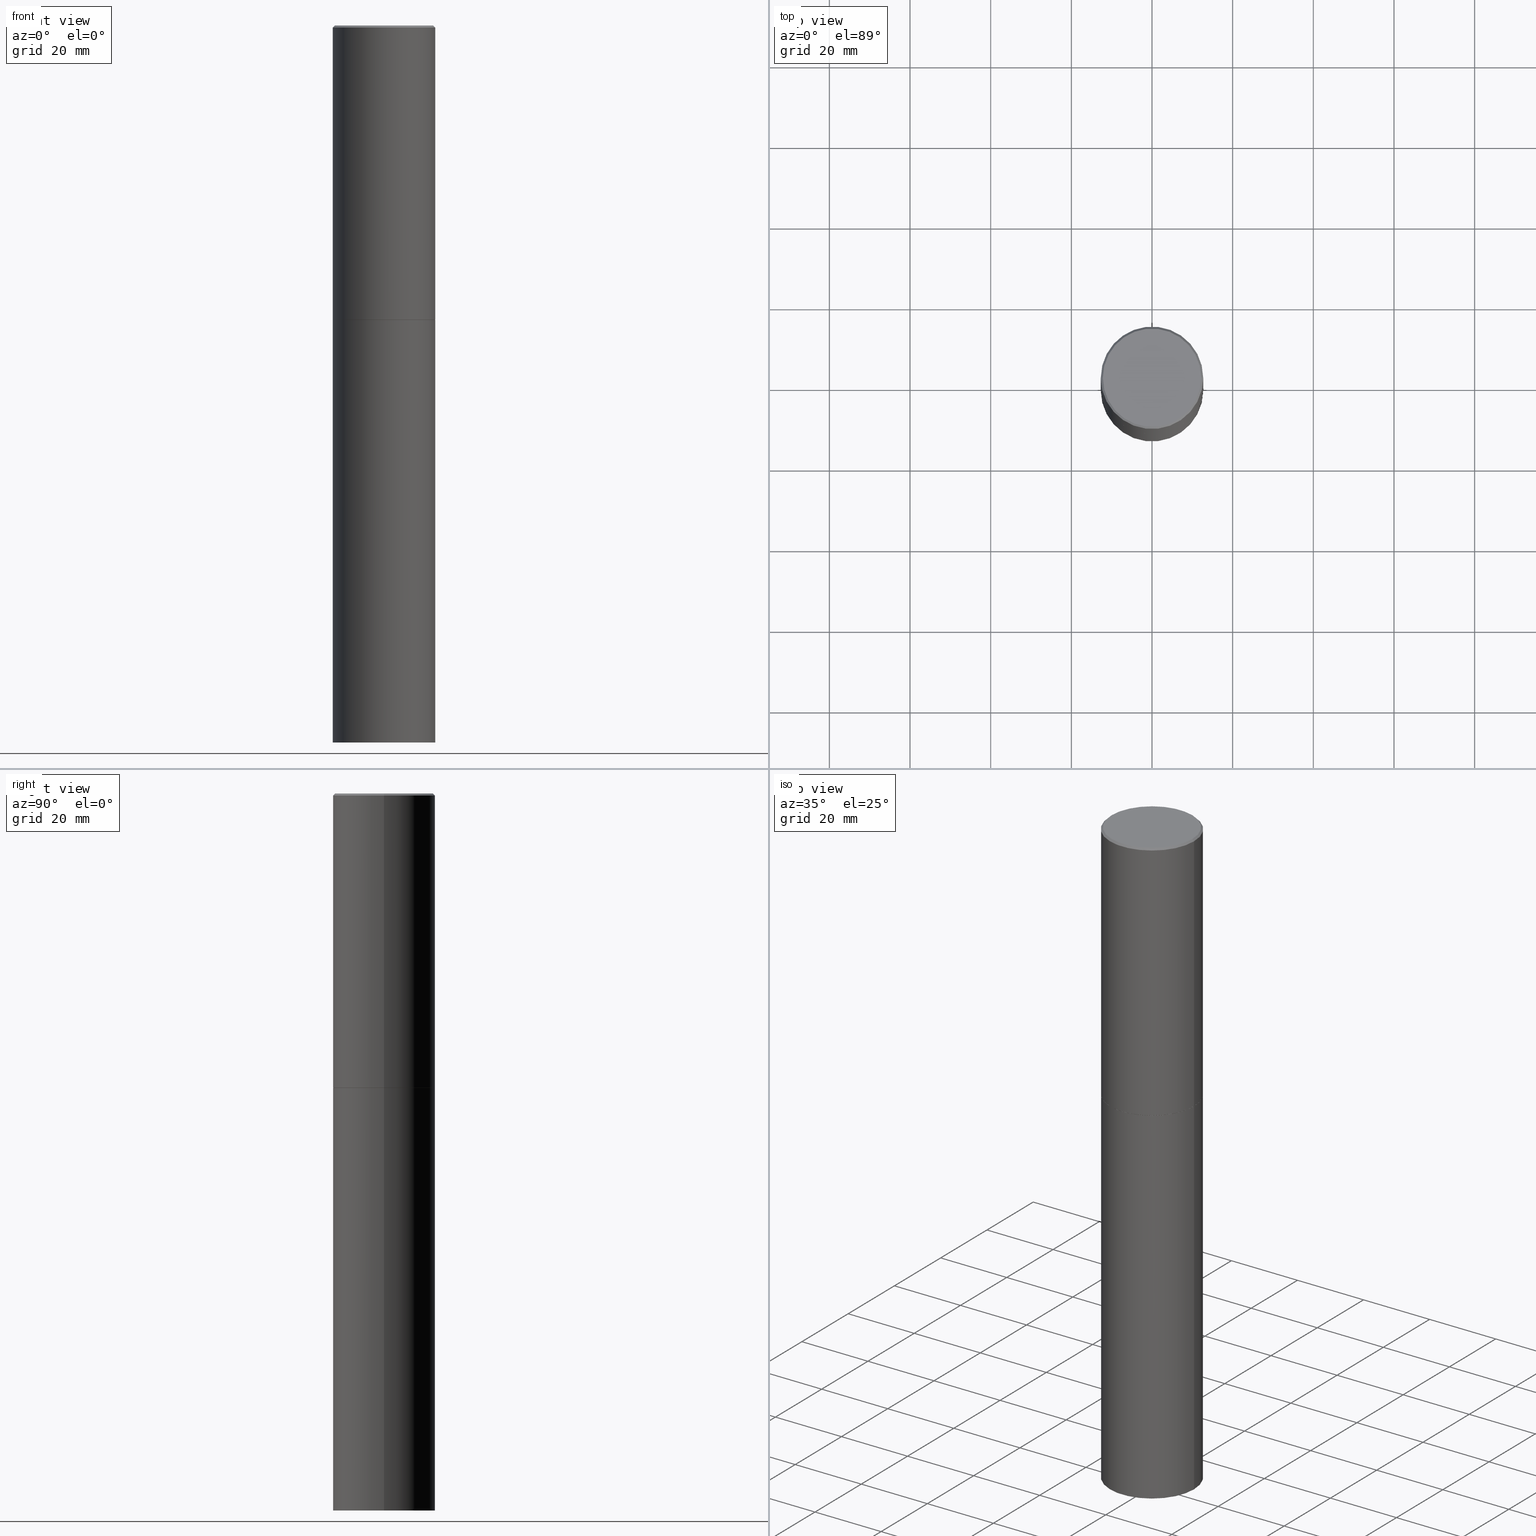
[diagram: canonical four-view strip — front | top / right | iso, engineering-drawing reading convention]
A machine part, canonical four-view strip (front | top / right | iso — engineering-drawing reading convention). The complete STEP part file that produces these views, byte-faithful:
ISO-10303-21;
HEADER;
FILE_DESCRIPTION (( 'STEP AP203' ),
    '1' );
FILE_NAME ('34870.STEP',
    '2024-02-27T18:09:00',
    ( '' ),
    ( '' ),
    'SwSTEP 2.0',
    'SolidWorks 2023',
    '' );
FILE_SCHEMA (( 'CONFIG_CONTROL_DESIGN' ));
ENDSEC;

DATA;
#1 =( CONVERSION_BASED_UNIT ( 'INCH', #254 ) LENGTH_UNIT ( ) NAMED_UNIT ( #146 ) );
#2 = SECURITY_CLASSIFICATION ( '', '', #94 ) ;
#3 = DIRECTION ( 'NONE',  ( -2.445468806185136597E-29, 3.491481338843145583E-15, 1.000000000000000000 ) ) ;
#4 = DIRECTION ( 'NONE',  ( -1.000000000000000000, 6.982962677686265922E-15, -4.876176775795935793E-29 ) ) ;
#5 = CARTESIAN_POINT ( 'NONE',  ( -0.4989999999999999991, -6.492400597731143185E-15, -2.875000000000000000 ) ) ;
#6 = CALENDAR_DATE ( 2024, 27, 2 ) ;
#7 = FACE_OUTER_BOUND ( 'NONE', #322, .T. ) ;
#8 = EDGE_CURVE ( 'NONE', #240, #291, #273, .T. ) ;
#9 = CARTESIAN_POINT ( 'NONE',  ( 3.491481338843304144E-15, 0.4999999999999755196, -7.000000000000001776 ) ) ;
#10 = COORDINATED_UNIVERSAL_TIME_OFFSET ( 5, 0, .BEHIND. ) ;
#11 = ORIENTED_EDGE ( 'NONE', *, *, #323, .F. ) ;
#12 = PLANE ( 'NONE',  #128 ) ;
#13 = VERTEX_POINT ( 'NONE', #332 ) ;
#14 = CIRCLE ( 'NONE', #198, 0.5000000000000000000 ) ;
#15 = COORDINATED_UNIVERSAL_TIME_OFFSET ( 5, 0, .BEHIND. ) ;
#16 = ORIENTED_EDGE ( 'NONE', *, *, #259, .F. ) ;
#17 = CARTESIAN_POINT ( 'NONE',  ( 7.030722817782267716E-29, -1.003800884917404311E-14, -2.875000000000000000 ) ) ;
#18 = DIRECTION ( 'NONE',  ( 1.000000000000000000, 0.000000000000000000, 0.000000000000000000 ) ) ;
#19 = ORIENTED_EDGE ( 'NONE', *, *, #265, .F. ) ;
#20 = CARTESIAN_POINT ( 'NONE',  ( 0.4989999999999999991, -1.352250722533949203E-14, -2.875000000000000000 ) ) ;
#21 = AXIS2_PLACEMENT_3D ( 'NONE', #206, #65, #148 ) ;
#22 = ORIENTED_EDGE ( 'NONE', *, *, #232, .T. ) ;
#23 = ORIENTED_EDGE ( 'NONE', *, *, #167, .T. ) ;
#24 = ADVANCED_FACE ( 'NONE', ( #192 ), #174, .T. ) ;
#25 = EDGE_LOOP ( 'NONE', ( #112, #299, #357, #70 ) ) ;
#26 = CARTESIAN_POINT ( 'NONE',  ( 7.028277348976082113E-29, -1.003451736783520168E-14, -2.874000000000000110 ) ) ;
#27 = APPROVAL_PERSON_ORGANIZATION ( #154, #172, #40 ) ;
#28 = DIRECTION ( 'NONE',  ( 1.000000000000000000, -6.982962677686269077E-15, 0.000000000000000000 ) ) ;
#29 = DIRECTION ( 'NONE',  ( 1.000000000000000000, -6.982962677686269077E-15, 0.000000000000000000 ) ) ;
#30 = CARTESIAN_POINT ( 'NONE',  ( 0.4799999999999996492, -3.396558832296480127E-15, 2.134256245052565135E-17 ) ) ;
#31 = AXIS2_PLACEMENT_3D ( 'NONE', #329, #169, #197 ) ;
#32 =( LENGTH_UNIT ( ) NAMED_UNIT ( * ) SI_UNIT ( $, .METRE. ) );
#33 = ADVANCED_FACE ( 'NONE', ( #269 ), #196, .T. ) ;
#34 = CARTESIAN_POINT ( 'NONE',  ( 0.5000000000000000000, -1.352599870667833503E-14, -2.874000000000000110 ) ) ;
#35 = EDGE_CURVE ( 'NONE', #13, #291, #56, .T. ) ;
#36 = CARTESIAN_POINT ( 'NONE',  ( 7.030722817782267716E-29, -1.003800884917404311E-14, -2.875000000000000000 ) ) ;
#37 = VERTEX_POINT ( 'NONE', #320 ) ;
#38 = VECTOR ( 'NONE', #335, 39.37007874015748143 ) ;
#39 = APPLICATION_CONTEXT ( 'configuration controlled 3d designs of mechanical parts and assemblies' ) ;
#40 = APPROVAL_ROLE ( '' ) ;
#41 = EDGE_LOOP ( 'NONE', ( #19, #160, #290, #16 ) ) ;
#42 = DATE_AND_TIME ( #284, #170 ) ;
#43 = COORDINATED_UNIVERSAL_TIME_OFFSET ( 5, 0, .BEHIND. ) ;
#44 = ORIENTED_EDGE ( 'NONE', *, *, #117, .T. ) ;
#45 = VECTOR ( 'NONE', #173, 39.37007874015748143 ) ;
#46 = DIRECTION ( 'NONE',  ( 0.000000000000000000, 0.000000000000000000, 1.000000000000000000 ) ) ;
#47 = ADVANCED_FACE ( 'NONE', ( #264 ), #12, .F. ) ;
#48 = DIRECTION ( 'NONE',  ( -2.445468806185136597E-29, 3.491481338843145583E-15, 1.000000000000000000 ) ) ;
#49 = FACE_OUTER_BOUND ( 'NONE', #41, .T. ) ;
#50 = EDGE_CURVE ( 'NONE', #350, #288, #14, .T. ) ;
#51 = AXIS2_PLACEMENT_3D ( 'NONE', #221, #300, #133 ) ;
#52 = DIRECTION ( 'NONE',  ( -2.445468806185136597E-29, 3.491481338843145583E-15, 1.000000000000000000 ) ) ;
#53 = AXIS2_PLACEMENT_3D ( 'NONE', #203, #63, #29 ) ;
#54 = CARTESIAN_POINT ( 'NONE',  ( 4.890937612370297681E-31, -6.982962677686324889E-17, -0.02000000000000009756 ) ) ;
#55 = DIRECTION ( 'NONE',  ( 1.000000000000000000, -6.982962677686267499E-15, 4.876431871984417079E-29 ) ) ;
#56 = CIRCLE ( 'NONE', #354, 0.5000000000000000000 ) ;
#57 = LINE ( 'NONE', #145, #72 ) ;
#58 = DIRECTION ( 'NONE',  ( -0.7071067811866199593, 7.493145998870616062E-15, 0.7071067811864750752 ) ) ;
#59 = DIRECTION ( 'NONE',  ( 1.000000000000000000, -6.982962677686266711E-15, 0.000000000000000000 ) ) ;
#60 = VECTOR ( 'NONE', #58, 39.37007874015748143 ) ;
#61 = CARTESIAN_POINT ( 'NONE',  ( 4.890937612370297681E-31, -6.982962677686324889E-17, -0.02000000000000009756 ) ) ;
#62 = DIRECTION ( 'NONE',  ( 1.000000000000000000, -6.982962677686265922E-15, 4.876176775795935793E-29 ) ) ;
#63 = DIRECTION ( 'NONE',  ( -2.445468806185136597E-29, 3.491481338843145583E-15, 1.000000000000000000 ) ) ;
#64 = CC_DESIGN_PERSON_AND_ORGANIZATION_ASSIGNMENT ( #99, #353, ( #285 ) ) ;
#65 = DIRECTION ( 'NONE',  ( 2.438088387897960049E-29, -3.491481338843145188E-15, -1.000000000000000000 ) ) ;
#66 = APPROVAL_DATE_TIME ( #73, #172 ) ;
#67 = CC_DESIGN_APPROVAL ( #86, ( #285 ) ) ;
#68 = CALENDAR_DATE ( 2024, 27, 2 ) ;
#69 = DATE_AND_TIME ( #68, #308 ) ;
#70 = ORIENTED_EDGE ( 'NONE', *, *, #35, .F. ) ;
#71 = VECTOR ( 'NONE', #111, 39.37007874015748143 ) ;
#72 = VECTOR ( 'NONE', #175, 39.37007874015748143 ) ;
#73 = DATE_AND_TIME ( #126, #318 ) ;
#74 = ORIENTED_EDGE ( 'NONE', *, *, #259, .T. ) ;
#75 = CARTESIAN_POINT ( 'NONE',  ( 0.000000000000000000, 0.000000000000000000, 0.000000000000000000 ) ) ;
#76 = APPLICATION_CONTEXT ( 'configuration controlled 3d designs of mechanical parts and assemblies' ) ;
#77 = CARTESIAN_POINT ( 'NONE',  ( -0.4999999999999997224, 3.421651712066268085E-15, -0.02000000000000009756 ) ) ;
#78 = VERTEX_POINT ( 'NONE', #281 ) ;
#79 = CIRCLE ( 'NONE', #224, 0.5000000000000000000 ) ;
#80 = PRODUCT_DEFINITION ( 'UNKNOWN', '', #285, #312 ) ;
#81 = CARTESIAN_POINT ( 'NONE',  ( -0.4999999999999997224, 3.421651712066268085E-15, -0.02000000000000009756 ) ) ;
#82 = DIRECTION ( 'NONE',  ( -2.445468806185136597E-29, 3.491481338843145583E-15, 1.000000000000000000 ) ) ;
#83 = EDGE_CURVE ( 'NONE', #78, #288, #90, .T. ) ;
#84 = CIRCLE ( 'NONE', #364, 0.4799999999999996492 ) ;
#85 = CYLINDRICAL_SURFACE ( 'NONE', #243, 0.5000000000000000000 ) ;
#86 = APPROVAL ( #239, 'UNSPECIFIED' ) ;
#87 = DIRECTION ( 'NONE',  ( 1.000000000000000000, -6.982962677686267499E-15, 4.876431871984417079E-29 ) ) ;
#88 = ADVANCED_FACE ( 'NONE', ( #120 ), #201, .F. ) ;
#89 = FACE_OUTER_BOUND ( 'NONE', #324, .T. ) ;
#90 = LINE ( 'NONE', #205, #330 ) ;
#91 = AXIS2_PLACEMENT_3D ( 'NONE', #140, #118, #258 ) ;
#92 = ADVANCED_FACE ( 'NONE', ( #7 ), #122, .T. ) ;
#93 = DIRECTION ( 'NONE',  ( 1.000000000000000000, -6.982962677686266711E-15, 0.000000000000000000 ) ) ;
#94 = SECURITY_CLASSIFICATION_LEVEL ( 'unclassified' ) ;
#95 = MANIFOLD_SOLID_BREP ( 'Body-Move/Copy2[2]', #138 ) ;
#96 = COORDINATED_UNIVERSAL_TIME_OFFSET ( 5, 0, .BEHIND. ) ;
#97 = EDGE_LOOP ( 'NONE', ( #215, #267 ) ) ;
#98 =( GEOMETRIC_REPRESENTATION_CONTEXT ( 3 ) GLOBAL_UNCERTAINTY_ASSIGNED_CONTEXT ( ( #210 ) ) GLOBAL_UNIT_ASSIGNED_CONTEXT ( ( #1, #277, #338 ) ) REPRESENTATION_CONTEXT ( 'NONE', 'WORKASPACE' ) );
#99 = PERSON_AND_ORGANIZATION ( #101, #297 ) ;
#100 = ORIENTED_EDGE ( 'NONE', *, *, #265, .T. ) ;
#101 = PERSON ( 'UNSPECIFIED', 'UNSPECIFIED', 'UNSPECIFIED', ('UNSPECIFIED'), ('UNSPECIFIED'), ('UNSPECIFIED') ) ;
#102 = PERSON_AND_ORGANIZATION ( #101, #297 ) ;
#103 = ORIENTED_EDGE ( 'NONE', *, *, #309, .T. ) ;
#104 = PERSON_AND_ORGANIZATION_ROLE ( 'design_supplier' ) ;
#105 = EDGE_LOOP ( 'NONE', ( #222, #11, #226, #74 ) ) ;
#106 = EDGE_CURVE ( 'NONE', #237, #131, #135, .T. ) ;
#107 = CARTESIAN_POINT ( 'NONE',  ( 4.890937612370297681E-31, -6.982962677686324889E-17, -0.02000000000000009756 ) ) ;
#108 = FACE_OUTER_BOUND ( 'NONE', #246, .T. ) ;
#109 = VERTEX_POINT ( 'NONE', #253 ) ;
#110 = CIRCLE ( 'NONE', #165, 0.4999999999999997224 ) ;
#111 = DIRECTION ( 'NONE',  ( 0.7071067811866199593, -2.468850131083015945E-15, 0.7071067811864750752 ) ) ;
#112 = ORIENTED_EDGE ( 'NONE', *, *, #336, .F. ) ;
#113 = LINE ( 'NONE', #116, #38 ) ;
#114 = CARTESIAN_POINT ( 'NONE',  ( 0.5000000000000000000, -1.352949018801717646E-14, -2.875000000000000000 ) ) ;
#115 = CC_DESIGN_PERSON_AND_ORGANIZATION_ASSIGNMENT ( #102, #104, ( #285 ) ) ;
#116 = CARTESIAN_POINT ( 'NONE',  ( 0.5000000000000000000, -3.491481338843133355E-15, 2.438088387897967896E-29 ) ) ;
#117 = EDGE_CURVE ( 'NONE', #109, #78, #212, .T. ) ;
#118 = DIRECTION ( 'NONE',  ( -2.445468806185136597E-29, 3.491481338843145583E-15, 1.000000000000000000 ) ) ;
#119 = CARTESIAN_POINT ( 'NONE',  ( -0.4999999999999998335, 3.552713678800499746E-15, -2.459467545127452330E-29 ) ) ;
#120 = FACE_OUTER_BOUND ( 'NONE', #194, .T. ) ;
#121 = APPROVAL_STATUS ( 'not_yet_approved' ) ;
#122 = CYLINDRICAL_SURFACE ( 'NONE', #164, 0.4999999999999998335 ) ;
#123 = DIRECTION ( 'NONE',  ( 1.000000000000000000, -6.982962677686266711E-15, 0.000000000000000000 ) ) ;
#124 = APPROVAL_STATUS ( 'not_yet_approved' ) ;
#125 = EDGE_LOOP ( 'NONE', ( #155, #218, #150, #134 ) ) ;
#126 = CALENDAR_DATE ( 2024, 27, 2 ) ;
#127 = ORIENTED_EDGE ( 'NONE', *, *, #344, .F. ) ;
#128 = AXIS2_PLACEMENT_3D ( 'NONE', #17, #233, #62 ) ;
#129 = AXIS2_PLACEMENT_3D ( 'NONE', #234, #283, #93 ) ;
#130 = DIRECTION ( 'NONE',  ( -2.445468806185136597E-29, 3.491481338843145583E-15, 1.000000000000000000 ) ) ;
#131 = VERTEX_POINT ( 'NONE', #81 ) ;
#132 = DATE_AND_TIME ( #6, #184 ) ;
#133 = DIRECTION ( 'NONE',  ( 1.000000000000000000, -6.982962677686270655E-15, 0.000000000000000000 ) ) ;
#134 = ORIENTED_EDGE ( 'NONE', *, *, #8, .F. ) ;
#135 = LINE ( 'NONE', #77, #183 ) ;
#136 = ADVANCED_FACE ( 'NONE', ( #49 ), #163, .T. ) ;
#137 = DIRECTION ( 'NONE',  ( -1.000000000000000000, 6.982962677686266711E-15, 0.000000000000000000 ) ) ;
#138 = CLOSED_SHELL ( 'NONE', ( #24, #92, #244, #209, #136, #287, #47, #88 ) ) ;
#139 = ORIENTED_EDGE ( 'NONE', *, *, #50, .T. ) ;
#140 = CARTESIAN_POINT ( 'NONE',  ( 0.000000000000000000, 0.000000000000000000, 0.000000000000000000 ) ) ;
#141 = CARTESIAN_POINT ( 'NONE',  ( 0.4999999999999998335, -3.491481338843132566E-15, 2.438088387897967336E-29 ) ) ;
#142 = FACE_OUTER_BOUND ( 'NONE', #25, .T. ) ;
#143 = CIRCLE ( 'NONE', #129, 0.5000000000000000000 ) ;
#144 = LINE ( 'NONE', #5, #60 ) ;
#145 = CARTESIAN_POINT ( 'NONE',  ( 0.4999999999999997224, -3.500078625662627502E-15, -0.02000000000000009756 ) ) ;
#146 = DIMENSIONAL_EXPONENTS ( 1.000000000000000000, 0.000000000000000000, 0.000000000000000000, 0.000000000000000000, 0.000000000000000000, 0.000000000000000000, 0.000000000000000000 ) ;
#147 = DIRECTION ( 'NONE',  ( -2.445468806185136597E-29, 3.491481338843145583E-15, 1.000000000000000000 ) ) ;
#148 = DIRECTION ( 'NONE',  ( -1.000000000000000000, 6.982962677686265922E-15, -4.876176775795935793E-29 ) ) ;
#149 = PERSON_AND_ORGANIZATION ( #101, #297 ) ;
#150 = ORIENTED_EDGE ( 'NONE', *, *, #167, .F. ) ;
#151 = EDGE_CURVE ( 'NONE', #240, #238, #307, .T. ) ;
#152 = SHAPE_DEFINITION_REPRESENTATION ( #216, #315 ) ;
#153 = ORIENTED_EDGE ( 'NONE', *, *, #83, .T. ) ;
#154 = PERSON_AND_ORGANIZATION ( #101, #297 ) ;
#155 = ORIENTED_EDGE ( 'NONE', *, *, #151, .T. ) ;
#156 = AXIS2_PLACEMENT_3D ( 'NONE', #75, #366, #296 ) ;
#157 = AXIS2_PLACEMENT_3D ( 'NONE', #242, #171, #355 ) ;
#158 = CARTESIAN_POINT ( 'NONE',  ( 7.028277348976082113E-29, -1.003451736783520168E-14, -2.874000000000000110 ) ) ;
#159 = APPLICATION_PROTOCOL_DEFINITION ( 'international standard', 'config_control_design', 1994, #39 ) ;
#160 = ORIENTED_EDGE ( 'NONE', *, *, #35, .T. ) ;
#161 = APPROVAL ( #124, 'UNSPECIFIED' ) ;
#162 = DIRECTION ( 'NONE',  ( 1.000000000000000000, -6.982962677686269077E-15, 0.000000000000000000 ) ) ;
#163 = CYLINDRICAL_SURFACE ( 'NONE', #156, 0.4999999999999998335 ) ;
#164 = AXIS2_PLACEMENT_3D ( 'NONE', #345, #195, #223 ) ;
#165 = AXIS2_PLACEMENT_3D ( 'NONE', #61, #304, #59 ) ;
#166 = CARTESIAN_POINT ( 'NONE',  ( -5.219257071676098903E-46, 7.451715851902235727E-32, 2.134256245050205639E-17 ) ) ;
#167 = EDGE_CURVE ( 'NONE', #291, #13, #303, .T. ) ;
#168 = ORIENTED_EDGE ( 'NONE', *, *, #50, .F. ) ;
#169 = DIRECTION ( 'NONE',  ( -2.445468806185136597E-29, 3.491481338843145583E-15, 1.000000000000000000 ) ) ;
#170 = LOCAL_TIME ( 13, 9, 0.000000000000000000, #43 ) ;
#171 = DIRECTION ( 'NONE',  ( 2.445468806185136597E-29, -3.491481338843145583E-15, -1.000000000000000000 ) ) ;
#172 = APPROVAL ( #121, 'UNSPECIFIED' ) ;
#173 = DIRECTION ( 'NONE',  ( -2.445468806185136877E-29, 3.491481338843145188E-15, 1.000000000000000000 ) ) ;
#174 = CONICAL_SURFACE ( 'NONE', #279, 0.4989999999999999991, 0.7853981633975507526 ) ;
#175 = DIRECTION ( 'NONE',  ( 0.7071067811865464625, -7.319954787623252890E-15, -0.7071067811865485719 ) ) ;
#176 = CC_DESIGN_SECURITY_CLASSIFICATION ( #2, ( #285 ) ) ;
#177 = DIRECTION ( 'NONE',  ( -2.445468806185136877E-29, 3.491481338843145188E-15, 1.000000000000000000 ) ) ;
#178 = DIRECTION ( 'NONE',  ( -2.445468806185136877E-29, 3.491481338843145188E-15, 1.000000000000000000 ) ) ;
#179 = DIRECTION ( 'NONE',  ( -2.445468806185136597E-29, 3.491481338843145583E-15, 1.000000000000000000 ) ) ;
#180 = ORIENTED_EDGE ( 'NONE', *, *, #83, .F. ) ;
#181 = EDGE_CURVE ( 'NONE', #238, #240, #225, .T. ) ;
#182 = DATE_TIME_ROLE ( 'creation_date' ) ;
#183 = VECTOR ( 'NONE', #333, 39.37007874015748143 ) ;
#184 = LOCAL_TIME ( 13, 9, 0.000000000000000000, #15 ) ;
#185 = CC_DESIGN_DATE_AND_TIME_ASSIGNMENT ( #42, #313, ( #2 ) ) ;
#186 = EDGE_CURVE ( 'NONE', #271, #237, #229, .T. ) ;
#187 = APPROVAL_DATE_TIME ( #69, #161 ) ;
#188 = APPROVAL_ROLE ( '' ) ;
#189 = PRODUCT_RELATED_PRODUCT_CATEGORY ( 'detail', '', ( #263 ) ) ;
#190 = CARTESIAN_POINT ( 'NONE',  ( 0.000000000000000000, 0.000000000000000000, 0.000000000000000000 ) ) ;
#191 = EDGE_LOOP ( 'NONE', ( #44, #153, #168, #314 ) ) ;
#192 = FACE_OUTER_BOUND ( 'NONE', #125, .T. ) ;
#193 = ORIENTED_EDGE ( 'NONE', *, *, #106, .F. ) ;
#194 = EDGE_LOOP ( 'NONE', ( #326, #227 ) ) ;
#195 = DIRECTION ( 'NONE',  ( -2.445468806185136597E-29, 3.491481338843145583E-15, 1.000000000000000000 ) ) ;
#196 = PLANE ( 'NONE',  #316 ) ;
#197 = DIRECTION ( 'NONE',  ( 1.000000000000000000, -6.982962677686269077E-15, 0.000000000000000000 ) ) ;
#198 = AXIS2_PLACEMENT_3D ( 'NONE', #36, #147, #123 ) ;
#199 = CONICAL_SURFACE ( 'NONE', #157, 0.4999999999999997224, 0.7853981633974468357 ) ;
#200 = DIRECTION ( 'NONE',  ( 1.000000000000000000, -6.982962677686266711E-15, 4.876176775795935793E-29 ) ) ;
#201 = PLANE ( 'NONE',  #21 ) ;
#202 = AXIS2_PLACEMENT_3D ( 'NONE', #362, #294, #28 ) ;
#203 = CARTESIAN_POINT ( 'NONE',  ( 7.030722817782267716E-29, -1.003800884917404311E-14, -2.875000000000000000 ) ) ;
#204 = AXIS2_PLACEMENT_3D ( 'NONE', #166, #301, #55 ) ;
#205 = CARTESIAN_POINT ( 'NONE',  ( -0.5000000000000000000, 3.552713678800500929E-15, -2.459467545127452891E-29 ) ) ;
#206 = CARTESIAN_POINT ( 'NONE',  ( 3.351822085289405181E-15, 0.4799999999999996492, -1.665239761419457638E-15 ) ) ;
#207 = DIRECTION ( 'NONE',  ( 1.000000000000000000, -6.982962677686266711E-15, 0.000000000000000000 ) ) ;
#208 = APPROVAL_DATE_TIME ( #132, #86 ) ;
#209 = ADVANCED_FACE ( 'NONE', ( #276 ), #199, .T. ) ;
#210 = UNCERTAINTY_MEASURE_WITH_UNIT (LENGTH_MEASURE( 1.000000000000000082E-05 ), #1, 'distance_accuracy_value', 'NONE');
#211 = APPROVAL_ROLE ( '' ) ;
#212 = CIRCLE ( 'NONE', #51, 0.5000000000000000000 ) ;
#213 = CC_DESIGN_APPROVAL ( #161, ( #2 ) ) ;
#214 = APPLICATION_PROTOCOL_DEFINITION ( 'international standard', 'config_control_design', 1994, #76 ) ;
#215 = ORIENTED_EDGE ( 'NONE', *, *, #117, .F. ) ;
#216 = PRODUCT_DEFINITION_SHAPE ( 'NONE', 'NONE',  #80 ) ;
#217 = PERSON_AND_ORGANIZATION ( #101, #297 ) ;
#218 = ORIENTED_EDGE ( 'NONE', *, *, #336, .T. ) ;
#219 = MANIFOLD_SOLID_BREP ( 'Body-Move/Copy2[1]', #363 ) ;
#220 = AXIS2_PLACEMENT_3D ( 'NONE', #107, #327, #245 ) ;
#221 = CARTESIAN_POINT ( 'NONE',  ( 1.711828164329595394E-28, -2.444036937190201868E-14, -7.000000000000000000 ) ) ;
#222 = ORIENTED_EDGE ( 'NONE', *, *, #309, .F. ) ;
#223 = DIRECTION ( 'NONE',  ( 1.000000000000000000, -6.982962677686267499E-15, 4.876176775795936353E-29 ) ) ;
#224 = AXIS2_PLACEMENT_3D ( 'NONE', #256, #3, #340 ) ;
#225 = CIRCLE ( 'NONE', #31, 0.4989999999999999991 ) ;
#226 = ORIENTED_EDGE ( 'NONE', *, *, #106, .T. ) ;
#227 = ORIENTED_EDGE ( 'NONE', *, *, #186, .T. ) ;
#228 = CARTESIAN_POINT ( 'NONE',  ( -5.219257071676098903E-46, 7.451715851902235727E-32, 2.134256245050205639E-17 ) ) ;
#229 = CIRCLE ( 'NONE', #204, 0.4799999999999996492 ) ;
#230 = FACE_OUTER_BOUND ( 'NONE', #191, .T. ) ;
#231 = LINE ( 'NONE', #141, #45 ) ;
#232 = EDGE_CURVE ( 'NONE', #37, #131, #292, .T. ) ;
#233 = DIRECTION ( 'NONE',  ( -2.438088387897960049E-29, 3.491481338843145188E-15, 1.000000000000000000 ) ) ;
#234 = CARTESIAN_POINT ( 'NONE',  ( 7.030722817782267716E-29, -1.003800884917404311E-14, -2.875000000000000000 ) ) ;
#235 = LOCAL_TIME ( 13, 9, 0.000000000000000000, #10 ) ;
#236 = DIRECTION ( 'NONE',  ( 2.438088387897960049E-29, -3.491481338843145188E-15, -1.000000000000000000 ) ) ;
#237 = VERTEX_POINT ( 'NONE', #272 ) ;
#238 = VERTEX_POINT ( 'NONE', #358 ) ;
#239 = APPROVAL_STATUS ( 'not_yet_approved' ) ;
#240 = VERTEX_POINT ( 'NONE', #247 ) ;
#241 = EDGE_LOOP ( 'NONE', ( #180, #295, #252, #127 ) ) ;
#242 = CARTESIAN_POINT ( 'NONE',  ( 4.890937612370297681E-31, -6.982962677686324889E-17, -0.02000000000000009756 ) ) ;
#243 = AXIS2_PLACEMENT_3D ( 'NONE', #306, #179, #200 ) ;
#244 = ADVANCED_FACE ( 'NONE', ( #108 ), #270, .T. ) ;
#245 = DIRECTION ( 'NONE',  ( 1.000000000000000000, -6.982962677686266711E-15, 0.000000000000000000 ) ) ;
#246 = EDGE_LOOP ( 'NONE', ( #249, #103, #22, #193 ) ) ;
#247 = CARTESIAN_POINT ( 'NONE',  ( 0.4989999999999999991, -1.352250722533949203E-14, -2.875000000000000000 ) ) ;
#248 = EDGE_CURVE ( 'NONE', #109, #350, #113, .T. ) ;
#249 = ORIENTED_EDGE ( 'NONE', *, *, #186, .F. ) ;
#250 = CC_DESIGN_PERSON_AND_ORGANIZATION_ASSIGNMENT ( #317, #319, ( #2 ) ) ;
#251 = VECTOR ( 'NONE', #177, 39.37007874015748143 ) ;
#252 = ORIENTED_EDGE ( 'NONE', *, *, #248, .T. ) ;
#253 = CARTESIAN_POINT ( 'NONE',  ( 0.5000000000000000000, -2.793185071074515204E-14, -7.000000000000000000 ) ) ;
#254 = LENGTH_MEASURE_WITH_UNIT ( LENGTH_MEASURE( 0.02539999999999999897 ), #32 );
#255 = EDGE_CURVE ( 'NONE', #291, #37, #231, .T. ) ;
#256 = CARTESIAN_POINT ( 'NONE',  ( 1.711828164329595394E-28, -2.444036937190201868E-14, -7.000000000000000000 ) ) ;
#257 = CC_DESIGN_DATE_AND_TIME_ASSIGNMENT ( #266, #182, ( #80 ) ) ;
#258 = DIRECTION ( 'NONE',  ( 1.000000000000000000, -6.982962677686266711E-15, 4.876176775795935793E-29 ) ) ;
#259 = EDGE_CURVE ( 'NONE', #131, #37, #110, .T. ) ;
#260 = DIRECTION ( 'NONE',  ( 2.438088387897960049E-29, -3.491481338843145188E-15, -1.000000000000000000 ) ) ;
#261 = ADVANCED_FACE ( 'NONE', ( #89 ), #310, .F. ) ;
#262 = PERSON_AND_ORGANIZATION ( #101, #297 ) ;
#263 = PRODUCT ( '34870', '34870', '', ( #343 ) ) ;
#264 = FACE_OUTER_BOUND ( 'NONE', #365, .T. ) ;
#265 = EDGE_CURVE ( 'NONE', #13, #131, #278, .T. ) ;
#266 = DATE_AND_TIME ( #289, #235 ) ;
#267 = ORIENTED_EDGE ( 'NONE', *, *, #361, .F. ) ;
#268 = AXIS2_PLACEMENT_3D ( 'NONE', #26, #52, #334 ) ;
#269 = FACE_OUTER_BOUND ( 'NONE', #97, .T. ) ;
#270 = CONICAL_SURFACE ( 'NONE', #337, 0.4999999999999997224, 0.7853981633974468357 ) ;
#271 = VERTEX_POINT ( 'NONE', #30 ) ;
#272 = CARTESIAN_POINT ( 'NONE',  ( -0.4799999999999996492, 3.386736898677836830E-15, 2.134256245047849534E-17 ) ) ;
#273 = LINE ( 'NONE', #20, #71 ) ;
#274 = DIRECTION ( 'NONE',  ( 2.445468806185136597E-29, -3.491481338843145583E-15, -1.000000000000000000 ) ) ;
#275 = APPROVAL_PERSON_ORGANIZATION ( #262, #86, #211 ) ;
#276 = FACE_OUTER_BOUND ( 'NONE', #105, .T. ) ;
#277 =( NAMED_UNIT ( * ) PLANE_ANGLE_UNIT ( ) SI_UNIT ( $, .RADIAN. ) );
#278 = LINE ( 'NONE', #119, #251 ) ;
#279 = AXIS2_PLACEMENT_3D ( 'NONE', #293, #48, #162 ) ;
#280 = CYLINDRICAL_SURFACE ( 'NONE', #91, 0.5000000000000000000 ) ;
#281 = CARTESIAN_POINT ( 'NONE',  ( -0.5000000000000000000, -1.368647543173752918E-14, -7.000000000000000000 ) ) ;
#282 = CARTESIAN_POINT ( 'NONE',  ( -0.5000000000000000000, -1.368647543173752918E-14, -2.875000000000000000 ) ) ;
#283 = DIRECTION ( 'NONE',  ( -2.445468806185136597E-29, 3.491481338843145583E-15, 1.000000000000000000 ) ) ;
#284 = CALENDAR_DATE ( 2024, 27, 2 ) ;
#285 = PRODUCT_DEFINITION_FORMATION_WITH_SPECIFIED_SOURCE ( 'ANY', '', #263, .NOT_KNOWN. ) ;
#286 = ORIENTED_EDGE ( 'NONE', *, *, #151, .F. ) ;
#287 = ADVANCED_FACE ( 'NONE', ( #142 ), #341, .T. ) ;
#288 = VERTEX_POINT ( 'NONE', #282 ) ;
#289 = CALENDAR_DATE ( 2024, 27, 2 ) ;
#290 = ORIENTED_EDGE ( 'NONE', *, *, #255, .T. ) ;
#291 = VERTEX_POINT ( 'NONE', #34 ) ;
#292 = CIRCLE ( 'NONE', #220, 0.4999999999999997224 ) ;
#293 = CARTESIAN_POINT ( 'NONE',  ( 7.030722817782267716E-29, -1.003800884917404311E-14, -2.875000000000000000 ) ) ;
#294 = DIRECTION ( 'NONE',  ( -2.445468806185136597E-29, 3.491481338843145583E-15, 1.000000000000000000 ) ) ;
#295 = ORIENTED_EDGE ( 'NONE', *, *, #361, .T. ) ;
#296 = DIRECTION ( 'NONE',  ( 1.000000000000000000, -6.982962677686267499E-15, 4.876176775795936353E-29 ) ) ;
#297 = ORGANIZATION ( 'UNSPECIFIED', 'UNSPECIFIED', '' ) ;
#298 = ORIENTED_EDGE ( 'NONE', *, *, #181, .F. ) ;
#299 = ORIENTED_EDGE ( 'NONE', *, *, #181, .T. ) ;
#300 = DIRECTION ( 'NONE',  ( -2.445468806185136597E-29, 3.491481338843145583E-15, 1.000000000000000000 ) ) ;
#301 = DIRECTION ( 'NONE',  ( -2.445468806185136597E-29, 3.491481338843145583E-15, 1.000000000000000000 ) ) ;
#302 = ADVANCED_FACE ( 'NONE', ( #339 ), #85, .T. ) ;
#303 = CIRCLE ( 'NONE', #268, 0.5000000000000000000 ) ;
#304 = DIRECTION ( 'NONE',  ( -2.445468806185136597E-29, 3.491481338843145583E-15, 1.000000000000000000 ) ) ;
#305 = CC_DESIGN_PERSON_AND_ORGANIZATION_ASSIGNMENT ( #348, #346, ( #263 ) ) ;
#306 = CARTESIAN_POINT ( 'NONE',  ( 0.000000000000000000, 0.000000000000000000, 0.000000000000000000 ) ) ;
#307 = CIRCLE ( 'NONE', #202, 0.4989999999999999991 ) ;
#308 = LOCAL_TIME ( 13, 9, 0.000000000000000000, #321 ) ;
#309 = EDGE_CURVE ( 'NONE', #271, #37, #57, .T. ) ;
#310 = PLANE ( 'NONE',  #349 ) ;
#311 = CARTESIAN_POINT ( 'NONE',  ( 3.491481338843203169E-15, 0.4999999999999899525, -2.875000000000001332 ) ) ;
#312 = DESIGN_CONTEXT ( 'detailed design', #76, 'design' ) ;
#313 = DATE_TIME_ROLE ( 'classification_date' ) ;
#314 = ORIENTED_EDGE ( 'NONE', *, *, #248, .F. ) ;
#315 = ADVANCED_BREP_SHAPE_REPRESENTATION ( '34870', ( #219, #95, #325 ), #98 ) ;
#316 = AXIS2_PLACEMENT_3D ( 'NONE', #9, #236, #342 ) ;
#317 = PERSON_AND_ORGANIZATION ( #101, #297 ) ;
#318 = LOCAL_TIME ( 13, 9, 0.000000000000000000, #96 ) ;
#319 = PERSON_AND_ORGANIZATION_ROLE ( 'classification_officer' ) ;
#320 = CARTESIAN_POINT ( 'NONE',  ( 0.4999999999999997224, -3.500078625662627502E-15, -0.02000000000000009756 ) ) ;
#321 = COORDINATED_UNIVERSAL_TIME_OFFSET ( 5, 0, .BEHIND. ) ;
#322 = EDGE_LOOP ( 'NONE', ( #23, #100, #360, #328 ) ) ;
#323 = EDGE_CURVE ( 'NONE', #237, #271, #84, .T. ) ;
#324 = EDGE_LOOP ( 'NONE', ( #139, #347 ) ) ;
#325 = AXIS2_PLACEMENT_3D ( 'NONE', #190, #46, #18 ) ;
#326 = ORIENTED_EDGE ( 'NONE', *, *, #323, .T. ) ;
#327 = DIRECTION ( 'NONE',  ( -2.445468806185136597E-29, 3.491481338843145583E-15, 1.000000000000000000 ) ) ;
#328 = ORIENTED_EDGE ( 'NONE', *, *, #255, .F. ) ;
#329 = CARTESIAN_POINT ( 'NONE',  ( 7.030722817782267716E-29, -1.003800884917404311E-14, -2.875000000000000000 ) ) ;
#330 = VECTOR ( 'NONE', #178, 39.37007874015748143 ) ;
#331 = APPROVAL_PERSON_ORGANIZATION ( #149, #161, #188 ) ;
#332 = CARTESIAN_POINT ( 'NONE',  ( -0.5000000000000000000, -1.499459818505530375E-15, -2.874000000000000110 ) ) ;
#333 = DIRECTION ( 'NONE',  ( -0.7071067811865464625, 2.468850131082245622E-15, -0.7071067811865485719 ) ) ;
#334 = DIRECTION ( 'NONE',  ( 1.000000000000000000, -6.982962677686266711E-15, 0.000000000000000000 ) ) ;
#335 = DIRECTION ( 'NONE',  ( -2.445468806185136877E-29, 3.491481338843145188E-15, 1.000000000000000000 ) ) ;
#336 = EDGE_CURVE ( 'NONE', #238, #13, #144, .T. ) ;
#337 = AXIS2_PLACEMENT_3D ( 'NONE', #54, #274, #137 ) ;
#338 =( NAMED_UNIT ( * ) SI_UNIT ( $, .STERADIAN. ) SOLID_ANGLE_UNIT ( ) );
#339 = FACE_OUTER_BOUND ( 'NONE', #241, .T. ) ;
#340 = DIRECTION ( 'NONE',  ( 1.000000000000000000, -6.982962677686270655E-15, 0.000000000000000000 ) ) ;
#341 = CONICAL_SURFACE ( 'NONE', #53, 0.4989999999999999991, 0.7853981633975507526 ) ;
#342 = DIRECTION ( 'NONE',  ( -1.000000000000000000, 6.982962677686265922E-15, -4.876176775795935793E-29 ) ) ;
#343 = MECHANICAL_CONTEXT ( 'NONE', #39, 'mechanical' ) ;
#344 = EDGE_CURVE ( 'NONE', #288, #350, #143, .T. ) ;
#345 = CARTESIAN_POINT ( 'NONE',  ( 0.000000000000000000, 0.000000000000000000, 0.000000000000000000 ) ) ;
#346 = PERSON_AND_ORGANIZATION_ROLE ( 'design_owner' ) ;
#347 = ORIENTED_EDGE ( 'NONE', *, *, #344, .T. ) ;
#348 = PERSON_AND_ORGANIZATION ( #101, #297 ) ;
#349 = AXIS2_PLACEMENT_3D ( 'NONE', #311, #260, #4 ) ;
#350 = VERTEX_POINT ( 'NONE', #114 ) ;
#351 = PERSON_AND_ORGANIZATION_ROLE ( 'creator' ) ;
#352 = CC_DESIGN_PERSON_AND_ORGANIZATION_ASSIGNMENT ( #217, #351, ( #80 ) ) ;
#353 = PERSON_AND_ORGANIZATION_ROLE ( 'creator' ) ;
#354 = AXIS2_PLACEMENT_3D ( 'NONE', #158, #130, #207 ) ;
#355 = DIRECTION ( 'NONE',  ( -1.000000000000000000, 6.982962677686266711E-15, 0.000000000000000000 ) ) ;
#356 = CC_DESIGN_APPROVAL ( #172, ( #80 ) ) ;
#357 = ORIENTED_EDGE ( 'NONE', *, *, #8, .T. ) ;
#358 = CARTESIAN_POINT ( 'NONE',  ( -0.4989999999999999991, -6.487102143382921572E-15, -2.875000000000000000 ) ) ;
#359 = ADVANCED_FACE ( 'NONE', ( #230 ), #280, .T. ) ;
#360 = ORIENTED_EDGE ( 'NONE', *, *, #232, .F. ) ;
#361 = EDGE_CURVE ( 'NONE', #78, #109, #79, .T. ) ;
#362 = CARTESIAN_POINT ( 'NONE',  ( 7.030722817782267716E-29, -1.003800884917404311E-14, -2.875000000000000000 ) ) ;
#363 = CLOSED_SHELL ( 'NONE', ( #359, #33, #261, #302 ) ) ;
#364 = AXIS2_PLACEMENT_3D ( 'NONE', #228, #82, #87 ) ;
#365 = EDGE_LOOP ( 'NONE', ( #286, #298 ) ) ;
#366 = DIRECTION ( 'NONE',  ( -2.445468806185136597E-29, 3.491481338843145583E-15, 1.000000000000000000 ) ) ;
ENDSEC;
END-ISO-10303-21;
